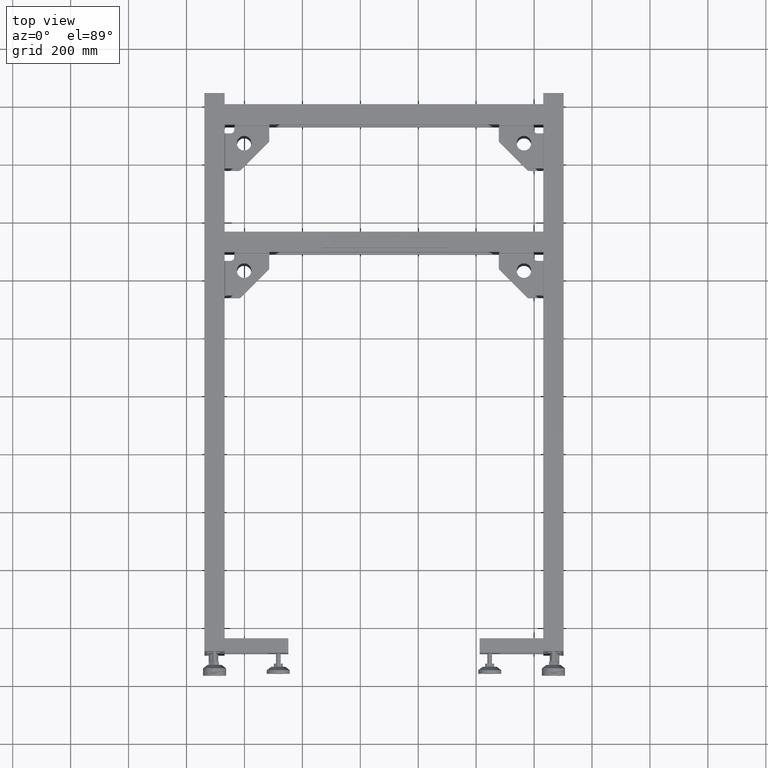
[diagram: clean part render]
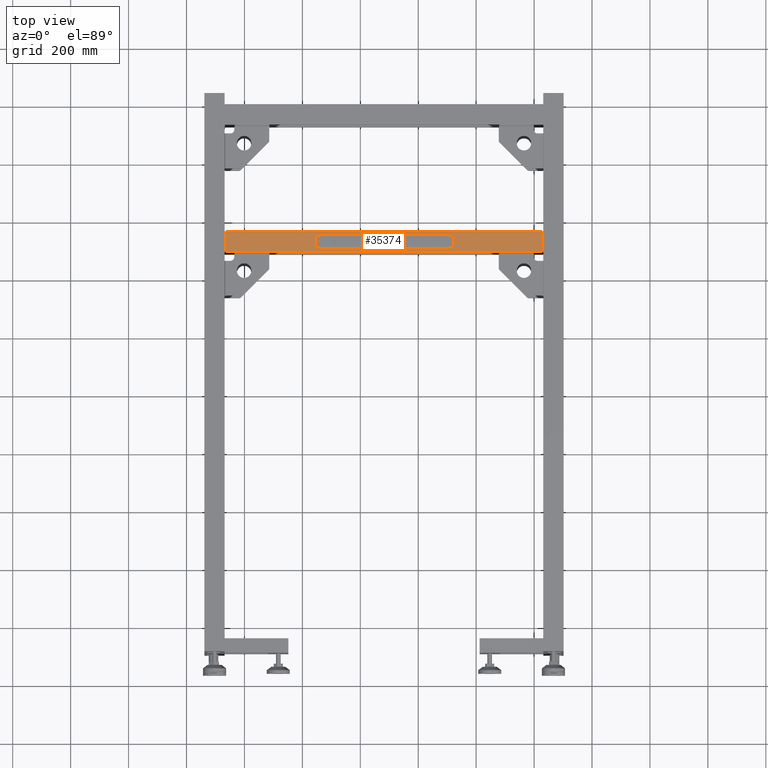
[diagram: same view with one face highlighted and labeled with its STEP entity id]
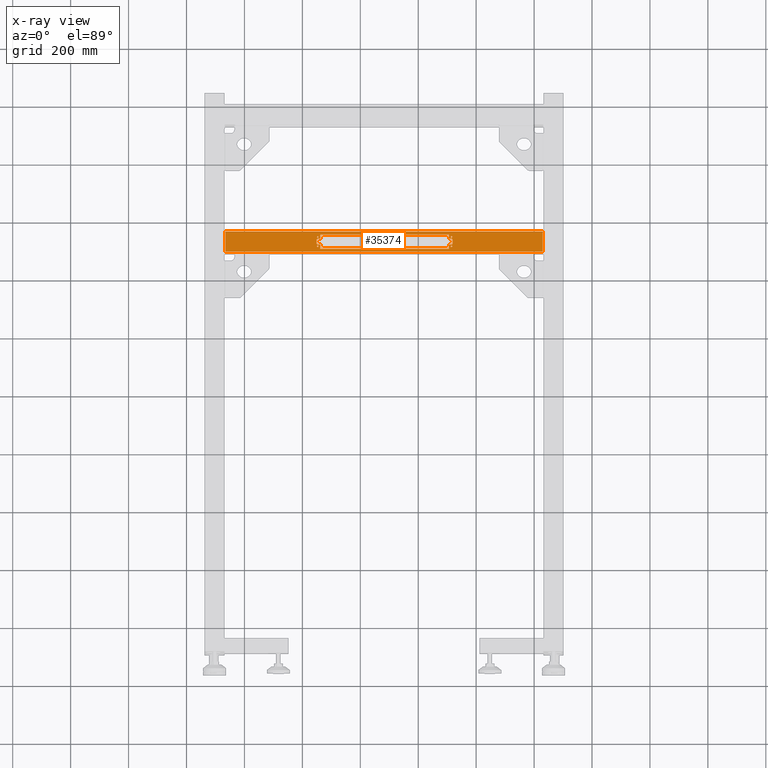
[diagram: x-ray of the same camera — body ghosted, the highlighted face saturated]
A machine part, top view. The second image highlights one B-rep face of the part: STEP entity #35374.
The next image is the same camera in x-ray: the body ghosted, the highlighted face saturated — about 0% of this face is hidden behind the body in this view.
In plain terms, the highlighted planar face has unit normal (0, 0, -1).
Its self-contained STEP definition (entity closure, byte-faithful):
#84 = CARTESIAN_POINT ( 'NONE',  ( -494.1724874371860210, 511.9410804020108117, 299.9999999999999432 ) ) ;
#206 = ORIENTED_EDGE ( 'NONE', *, *, #59155, .F. ) ;
#212 = VERTEX_POINT ( 'NONE', #30657 ) ;
#296 = CIRCLE ( 'NONE', #44288, 5.000000000000004441 ) ;
#777 = ORIENTED_EDGE ( 'NONE', *, *, #29912, .T. ) ;
#866 = EDGE_CURVE ( 'NONE', #59852, #42549, #29460, .T. ) ;
#1314 = DIRECTION ( 'NONE',  ( 0.000000000000000000, 1.000000000000000000, 3.957088814332035175E-15 ) ) ;
#2267 = EDGE_CURVE ( 'NONE', #212, #52946, #41512, .T. ) ;
#2477 = DIRECTION ( 'NONE',  ( 0.000000000000000000, 1.000000000000000000, 3.957088814332028864E-15 ) ) ;
#2911 = VERTEX_POINT ( 'NONE', #9693 ) ;
#3412 = DIRECTION ( 'NONE',  ( 0.000000000000000000, -1.000000000000000000, 0.000000000000000000 ) ) ;
#3539 = CIRCLE ( 'NONE', #24412, 2.600000000000046718 ) ;
#3893 = CARTESIAN_POINT ( 'NONE',  ( -951.1724874371860778, 531.9410804020108117, 300.0000000000000568 ) ) ;
#4231 = PLANE ( 'NONE',  #59996 ) ;
#4390 = VECTOR ( 'NONE', #6062, 1000.000000000000000 ) ;
#4404 = ORIENTED_EDGE ( 'NONE', *, *, #866, .F. ) ;
#5004 = CARTESIAN_POINT ( 'NONE',  ( -938.1724874371859642, 546.4410804020108117, 300.0000000000000568 ) ) ;
#5146 = ORIENTED_EDGE ( 'NONE', *, *, #19072, .T. ) ;
#5414 = VECTOR ( 'NONE', #49997, 1000.000000000000000 ) ;
#5570 = VERTEX_POINT ( 'NONE', #62688 ) ;
#5593 = DIRECTION ( 'NONE',  ( 0.000000000000000000, 1.000000000000000000, 0.000000000000000000 ) ) ;
#5809 = CARTESIAN_POINT ( 'NONE',  ( -494.1724874371860210, 546.4410804020108117, 300.0000000000000568 ) ) ;
#6062 = DIRECTION ( 'NONE',  ( -1.000000000000000000, -0.000000000000000000, 0.000000000000000000 ) ) ;
#6579 = CARTESIAN_POINT ( 'NONE',  ( -951.1724874371860778, 531.9410804020108117, 300.0000000000000568 ) ) ;
#6921 = DIRECTION ( 'NONE',  ( 0.000000000000000000, -1.000000000000000000, -3.396508223080412663E-15 ) ) ;
#7385 = CARTESIAN_POINT ( 'NONE',  ( -486.1724874371860210, 511.9410804020108117, 299.9999999999999432 ) ) ;
#7807 = CARTESIAN_POINT ( 'NONE',  ( -938.1724874371859642, 497.4410804020108117, 299.9999999999999432 ) ) ;
#7987 = LINE ( 'NONE', #28980, #5414 ) ;
#8016 = DIRECTION ( 'NONE',  ( 0.000000000000000000, 2.999999999999999839E-15, -1.000000000000000000 ) ) ;
#8199 = EDGE_CURVE ( 'NONE', #60630, #62377, #25221, .T. ) ;
#8228 = VERTEX_POINT ( 'NONE', #9405 ) ;
#8335 = DIRECTION ( 'NONE',  ( -1.000000000000000000, -0.000000000000000000, 0.000000000000000000 ) ) ;
#8598 = VERTEX_POINT ( 'NONE', #29634 ) ;
#8788 = ORIENTED_EDGE ( 'NONE', *, *, #65870, .T. ) ;
#8926 = DIRECTION ( 'NONE',  ( 0.000000000000000000, -2.999999999999999839E-15, 1.000000000000000000 ) ) ;
#8969 = EDGE_CURVE ( 'NONE', #15311, #8598, #56063, .T. ) ;
#8998 = DIRECTION ( 'NONE',  ( 0.000000000000000000, -2.999999999999999839E-15, 1.000000000000000000 ) ) ;
#9104 = EDGE_LOOP ( 'NONE', ( #39701, #46051 ) ) ;
#9401 = FACE_BOUND ( 'NONE', #55319, .T. ) ;
#9405 = CARTESIAN_POINT ( 'NONE',  ( -481.1724874371859642, 516.9410804020108117, 300.0000000000000000 ) ) ;
#9460 = EDGE_CURVE ( 'NONE', #33391, #54671, #42521, .T. ) ;
#9693 = CARTESIAN_POINT ( 'NONE',  ( -494.1724874371860210, 531.9410804020108117, 300.0000000000000568 ) ) ;
#9968 = DIRECTION ( 'NONE',  ( 0.000000000000000000, -1.000000000000000000, 0.000000000000000000 ) ) ;
#11160 = VECTOR ( 'NONE', #41746, 1000.000000000000000 ) ;
#11732 = LINE ( 'NONE', #54085, #43968 ) ;
#12569 = DIRECTION ( 'NONE',  ( -1.148506577198424101E-14, -1.000000000000000000, -3.957088814332020186E-15 ) ) ;
#12584 = ORIENTED_EDGE ( 'NONE', *, *, #66616, .F. ) ;
#13010 = AXIS2_PLACEMENT_3D ( 'NONE', #53802, #30522, #53459 ) ;
#13047 = CARTESIAN_POINT ( 'NONE',  ( -485.1724874371860210, 505.9410804020138812, 299.9999999999999432 ) ) ;
#13152 = VERTEX_POINT ( 'NONE', #27891 ) ;
#13997 = EDGE_CURVE ( 'NONE', #25583, #2911, #34490, .T. ) ;
#14119 = VECTOR ( 'NONE', #51027, 1000.000000000000000 ) ;
#14574 = LINE ( 'NONE', #84, #11160 ) ;
#14608 = EDGE_CURVE ( 'NONE', #52946, #212, #32580, .T. ) ;
#14903 = DIRECTION ( 'NONE',  ( 0.000000000000000000, 2.999999999999999839E-15, -1.000000000000000000 ) ) ;
#15127 = CARTESIAN_POINT ( 'NONE',  ( -485.1724874371860210, 537.9410804020139949, 300.0000000000000568 ) ) ;
#15311 = VERTEX_POINT ( 'NONE', #36196 ) ;
#15789 = EDGE_CURVE ( 'NONE', #2911, #33391, #22310, .T. ) ;
#16454 = EDGE_CURVE ( 'NONE', #48762, #59852, #54244, .T. ) ;
#16756 = CIRCLE ( 'NONE', #65130, 2.600000000000046718 ) ;
#17717 = CARTESIAN_POINT ( 'NONE',  ( -485.1724874371860210, 537.9410804020139949, 300.0000000000000568 ) ) ;
#17842 = VERTEX_POINT ( 'NONE', #64178 ) ;
#18338 = ORIENTED_EDGE ( 'NONE', *, *, #9460, .F. ) ;
#18346 = AXIS2_PLACEMENT_3D ( 'NONE', #40255, #8926, #34061 ) ;
#19072 = EDGE_CURVE ( 'NONE', #25583, #5570, #61753, .T. ) ;
#19080 = EDGE_CURVE ( 'NONE', #21633, #28820, #14574, .T. ) ;
#19140 = CARTESIAN_POINT ( 'NONE',  ( -947.1724874371860778, 540.5410804020107207, 300.0000000000000568 ) ) ;
#19314 = CARTESIAN_POINT ( 'NONE',  ( -947.1724874371860778, 537.9410804020108117, 300.0000000000000568 ) ) ;
#19698 = EDGE_LOOP ( 'NONE', ( #66414, #57597 ) ) ;
#19725 = FACE_BOUND ( 'NONE', #9104, .T. ) ;
#19759 = VECTOR ( 'NONE', #44983, 1000.000000000000000 ) ;
#20063 = DIRECTION ( 'NONE',  ( 0.000000000000000000, 3.396508223080412663E-15, -1.000000000000000000 ) ) ;
#20068 = EDGE_LOOP ( 'NONE', ( #54204, #62074, #49127, #206 ) ) ;
#20086 = DIRECTION ( 'NONE',  ( 0.000000000000000000, 2.999999999999999839E-15, -1.000000000000000000 ) ) ;
#20465 = EDGE_CURVE ( 'NONE', #55751, #28532, #47620, .T. ) ;
#20856 = VECTOR ( 'NONE', #32731, 1000.000000000000000 ) ;
#20900 = EDGE_CURVE ( 'NONE', #65223, #38579, #16756, .T. ) ;
#21633 = VERTEX_POINT ( 'NONE', #31855 ) ;
#21690 = CARTESIAN_POINT ( 'NONE',  ( -947.1724874371860778, 508.5410804020107207, 299.9999999999999432 ) ) ;
#22007 = CARTESIAN_POINT ( 'NONE',  ( -170.1724874371841736, 556.9410804020110390, 300.0000000000001137 ) ) ;
#22310 = LINE ( 'NONE', #5809, #63405 ) ;
#23016 = ORIENTED_EDGE ( 'NONE', *, *, #43069, .T. ) ;
#24412 = AXIS2_PLACEMENT_3D ( 'NONE', #54847, #38334, #43504 ) ;
#24586 = EDGE_CURVE ( 'NONE', #34601, #59684, #59258, .T. ) ;
#24843 = CARTESIAN_POINT ( 'NONE',  ( -494.1724874371860210, 531.9410804020108117, 300.0000000000000568 ) ) ;
#25216 = CARTESIAN_POINT ( 'NONE',  ( 129.8275125628138937, 556.9410804020106980, 300.0000000000001137 ) ) ;
#25221 = LINE ( 'NONE', #3893, #52555 ) ;
#25583 = VERTEX_POINT ( 'NONE', #59771 ) ;
#25637 = AXIS2_PLACEMENT_3D ( 'NONE', #19314, #8998, #54214 ) ;
#25856 = VERTEX_POINT ( 'NONE', #45474 ) ;
#27891 = CARTESIAN_POINT ( 'NONE',  ( -946.1724874371859642, 511.9410804020108117, 299.9999999999999432 ) ) ;
#27961 = AXIS2_PLACEMENT_3D ( 'NONE', #30903, #36076, #51582 ) ;
#28070 = CARTESIAN_POINT ( 'NONE',  ( -938.1724874371859642, 511.9410804020108117, 299.9999999999999432 ) ) ;
#28532 = VERTEX_POINT ( 'NONE', #19140 ) ;
#28765 = DIRECTION ( 'NONE',  ( 0.000000000000000000, 1.000000000000000000, 0.000000000000000000 ) ) ;
#28820 = VERTEX_POINT ( 'NONE', #7385 ) ;
#28980 = CARTESIAN_POINT ( 'NONE',  ( -938.1724874371859642, 546.4410804020108117, 300.0000000000000568 ) ) ;
#29460 = LINE ( 'NONE', #7807, #19759 ) ;
#29493 = AXIS2_PLACEMENT_3D ( 'NONE', #55182, #8016, #38676 ) ;
#29634 = CARTESIAN_POINT ( 'NONE',  ( -1266.172487437185964, 556.9410804020106980, 300.0000000000001137 ) ) ;
#29912 = EDGE_CURVE ( 'NONE', #60630, #59684, #65804, .T. ) ;
#30197 = CARTESIAN_POINT ( 'NONE',  ( -485.1724874371860210, 503.3410804020139722, 299.9999999999999432 ) ) ;
#30432 = AXIS2_PLACEMENT_3D ( 'NONE', #15127, #57128, #9968 ) ;
#30522 = DIRECTION ( 'NONE',  ( 0.000000000000000000, -2.999999999999999839E-15, 1.000000000000000000 ) ) ;
#30657 = CARTESIAN_POINT ( 'NONE',  ( -485.1724874371860210, 535.3410804020138585, 300.0000000000000568 ) ) ;
#30733 = DIRECTION ( 'NONE',  ( 8.326672684688670898E-15, -1.000000000000000000, -2.999999999999999839E-15 ) ) ;
#30903 = CARTESIAN_POINT ( 'NONE',  ( -485.1724874371860210, 505.9410804020138812, 299.9999999999999432 ) ) ;
#31401 = CARTESIAN_POINT ( 'NONE',  ( -486.1724874371860210, 526.9410804020108117, 300.0000000000000568 ) ) ;
#31476 = VECTOR ( 'NONE', #58020, 1000.000000000000000 ) ;
#31735 = LINE ( 'NONE', #57912, #36660 ) ;
#31832 = CARTESIAN_POINT ( 'NONE',  ( -938.1724874371859642, 497.4410804020108117, 299.9999999999999432 ) ) ;
#31855 = CARTESIAN_POINT ( 'NONE',  ( -494.1724874371860210, 511.9410804020108117, 299.9999999999999432 ) ) ;
#32153 = EDGE_CURVE ( 'NONE', #8598, #53732, #11732, .T. ) ;
#32542 = AXIS2_PLACEMENT_3D ( 'NONE', #44914, #20086, #45253 ) ;
#32553 = LINE ( 'NONE', #38081, #4390 ) ;
#32580 = CIRCLE ( 'NONE', #30432, 2.600000000000046718 ) ;
#32731 = DIRECTION ( 'NONE',  ( -1.000000000000000000, -0.000000000000000000, 0.000000000000000000 ) ) ;
#32908 = CARTESIAN_POINT ( 'NONE',  ( -486.1724874371860210, 516.9410804020108117, 300.0000000000000000 ) ) ;
#33391 = VERTEX_POINT ( 'NONE', #43423 ) ;
#34061 = DIRECTION ( 'NONE',  ( 0.000000000000000000, -1.000000000000000000, 0.000000000000000000 ) ) ;
#34486 = LINE ( 'NONE', #35523, #14119 ) ;
#34490 = LINE ( 'NONE', #24843, #45250 ) ;
#34601 = VERTEX_POINT ( 'NONE', #52914 ) ;
#35374 = ADVANCED_FACE ( 'NONE', ( #41402, #9401, #66908, #62410, #19725, #61743 ), #4231, .F. ) ;
#35523 = CARTESIAN_POINT ( 'NONE',  ( -951.1724874371860778, 511.9410804020108117, 299.9999999999999432 ) ) ;
#35667 = ORIENTED_EDGE ( 'NONE', *, *, #60792, .F. ) ;
#36076 = DIRECTION ( 'NONE',  ( 0.000000000000000000, -2.999999999999999839E-15, 1.000000000000000000 ) ) ;
#36196 = CARTESIAN_POINT ( 'NONE',  ( -170.1724874371841736, 556.9410804020110390, 300.0000000000001137 ) ) ;
#36569 = DIRECTION ( 'NONE',  ( 0.000000000000000000, 1.000000000000000000, 2.999999999999999839E-15 ) ) ;
#36660 = VECTOR ( 'NONE', #36569, 1000.000000000000000 ) ;
#36960 = VERTEX_POINT ( 'NONE', #21690 ) ;
#37899 = EDGE_LOOP ( 'NONE', ( #43926, #39708 ) ) ;
#38081 = CARTESIAN_POINT ( 'NONE',  ( 129.8275125628138937, 486.9410804020108117, 299.9999999999998863 ) ) ;
#38306 = VECTOR ( 'NONE', #2477, 1000.000000000000000 ) ;
#38334 = DIRECTION ( 'NONE',  ( 0.000000000000000000, -2.999999999999999839E-15, 1.000000000000000000 ) ) ;
#38579 = VERTEX_POINT ( 'NONE', #30197 ) ;
#38676 = DIRECTION ( 'NONE',  ( 0.000000000000000000, 1.000000000000000000, 0.000000000000000000 ) ) ;
#38720 = DIRECTION ( 'NONE',  ( 0.000000000000000000, -2.999999999999999839E-15, 1.000000000000000000 ) ) ;
#39701 = ORIENTED_EDGE ( 'NONE', *, *, #67484, .F. ) ;
#39708 = ORIENTED_EDGE ( 'NONE', *, *, #65084, .F. ) ;
#40213 = EDGE_LOOP ( 'NONE', ( #65166, #52046 ) ) ;
#40255 = CARTESIAN_POINT ( 'NONE',  ( -947.1724874371860778, 505.9410804020108117, 299.9999999999999432 ) ) ;
#40634 = ORIENTED_EDGE ( 'NONE', *, *, #16454, .F. ) ;
#40806 = ORIENTED_EDGE ( 'NONE', *, *, #48973, .F. ) ;
#40865 = CARTESIAN_POINT ( 'NONE',  ( -1266.172487437185964, 486.9410804020108117, 299.9999999999998863 ) ) ;
#41402 = FACE_OUTER_BOUND ( 'NONE', #20068, .T. ) ;
#41512 = CIRCLE ( 'NONE', #50316, 2.600000000000046718 ) ;
#41710 = CARTESIAN_POINT ( 'NONE',  ( -938.1724874371859642, 546.4410804020108117, 300.0000000000000568 ) ) ;
#41746 = DIRECTION ( 'NONE',  ( 1.000000000000000000, 5.337610695313250398E-16, 1.601283208593974939E-30 ) ) ;
#42521 = LINE ( 'NONE', #5004, #31476 ) ;
#42549 = VERTEX_POINT ( 'NONE', #42610 ) ;
#42610 = CARTESIAN_POINT ( 'NONE',  ( -494.1724874371860210, 497.4410804020108117, 299.9999999999999432 ) ) ;
#43069 = EDGE_CURVE ( 'NONE', #13152, #62377, #50145, .T. ) ;
#43221 = DIRECTION ( 'NONE',  ( 0.000000000000000000, -1.000000000000000000, 0.000000000000000000 ) ) ;
#43423 = CARTESIAN_POINT ( 'NONE',  ( -494.1724874371860210, 546.4410804020108117, 300.0000000000000568 ) ) ;
#43504 = DIRECTION ( 'NONE',  ( 0.000000000000000000, -1.000000000000000000, 0.000000000000000000 ) ) ;
#43860 = CARTESIAN_POINT ( 'NONE',  ( -485.1724874371860210, 540.5410804020141313, 300.0000000000000568 ) ) ;
#43926 = ORIENTED_EDGE ( 'NONE', *, *, #20465, .F. ) ;
#43968 = VECTOR ( 'NONE', #6921, 1000.000000000000000 ) ;
#44278 = DIRECTION ( 'NONE',  ( 0.000000000000000000, 2.999999999999999839E-15, -1.000000000000000000 ) ) ;
#44288 = AXIS2_PLACEMENT_3D ( 'NONE', #32908, #44278, #28765 ) ;
#44866 = CARTESIAN_POINT ( 'NONE',  ( -485.1724874371860210, 508.5410804020140745, 299.9999999999999432 ) ) ;
#44914 = CARTESIAN_POINT ( 'NONE',  ( -946.1724874371859642, 516.9410804020108117, 300.0000000000000000 ) ) ;
#44983 = DIRECTION ( 'NONE',  ( 1.000000000000000000, 6.251255769285789110E-17, 1.875376730785736675E-31 ) ) ;
#45071 = EDGE_CURVE ( 'NONE', #36960, #17842, #64500, .T. ) ;
#45250 = VECTOR ( 'NONE', #8335, 1000.000000000000000 ) ;
#45253 = DIRECTION ( 'NONE',  ( 0.000000000000000000, 1.000000000000000000, 0.000000000000000000 ) ) ;
#45474 = CARTESIAN_POINT ( 'NONE',  ( -170.1724874371841736, 486.9410804020110390, 299.9999999999998863 ) ) ;
#45497 = CARTESIAN_POINT ( 'NONE',  ( -951.1724874371860778, 526.9410804020108117, 300.0000000000000568 ) ) ;
#45549 = CARTESIAN_POINT ( 'NONE',  ( -947.1724874371860778, 535.3410804020107889, 300.0000000000000568 ) ) ;
#45865 = VECTOR ( 'NONE', #12569, 1000.000000000000000 ) ;
#46051 = ORIENTED_EDGE ( 'NONE', *, *, #20900, .F. ) ;
#46635 = EDGE_CURVE ( 'NONE', #42549, #21633, #48957, .T. ) ;
#47620 = CIRCLE ( 'NONE', #25637, 2.600000000000046718 ) ;
#48180 = DIRECTION ( 'NONE',  ( 2.653611717788262918E-16, -1.000000000000000000, -3.396508223080412663E-15 ) ) ;
#48581 = CARTESIAN_POINT ( 'NONE',  ( -951.1724874371860778, 516.9410804020108117, 300.0000000000000000 ) ) ;
#48762 = VERTEX_POINT ( 'NONE', #56680 ) ;
#48812 = ORIENTED_EDGE ( 'NONE', *, *, #24586, .F. ) ;
#48861 = EDGE_CURVE ( 'NONE', #17842, #36960, #59237, .T. ) ;
#48957 = LINE ( 'NONE', #58947, #38306 ) ;
#48973 = EDGE_CURVE ( 'NONE', #54671, #34601, #7987, .T. ) ;
#49073 = VECTOR ( 'NONE', #65726, 1000.000000000000000 ) ;
#49127 = ORIENTED_EDGE ( 'NONE', *, *, #61940, .F. ) ;
#49909 = DIRECTION ( 'NONE',  ( 0.000000000000000000, -2.999999999999999839E-15, 1.000000000000000000 ) ) ;
#49997 = DIRECTION ( 'NONE',  ( 3.828355257328120833E-15, -1.000000000000000000, -3.957088814332029653E-15 ) ) ;
#50145 = CIRCLE ( 'NONE', #32542, 5.000000000000004441 ) ;
#50188 = VECTOR ( 'NONE', #48180, 1000.000000000000000 ) ;
#50227 = CARTESIAN_POINT ( 'NONE',  ( 129.8275125628138937, 556.9410804020106980, 300.0000000000001137 ) ) ;
#50316 = AXIS2_PLACEMENT_3D ( 'NONE', #17717, #38720, #43221 ) ;
#51027 = DIRECTION ( 'NONE',  ( 1.000000000000000000, 1.441154887734576138E-14, 4.323464663203728341E-29 ) ) ;
#51582 = DIRECTION ( 'NONE',  ( 0.000000000000000000, -1.000000000000000000, 0.000000000000000000 ) ) ;
#52046 = ORIENTED_EDGE ( 'NONE', *, *, #14608, .F. ) ;
#52555 = VECTOR ( 'NONE', #30733, 1000.000000000000000 ) ;
#52914 = CARTESIAN_POINT ( 'NONE',  ( -938.1724874371859642, 531.9410804020108117, 300.0000000000000568 ) ) ;
#52941 = AXIS2_PLACEMENT_3D ( 'NONE', #31401, #14903, #5593 ) ;
#52946 = VERTEX_POINT ( 'NONE', #43860 ) ;
#53459 = DIRECTION ( 'NONE',  ( 0.000000000000000000, -1.000000000000000000, 0.000000000000000000 ) ) ;
#53732 = VERTEX_POINT ( 'NONE', #40865 ) ;
#53802 = CARTESIAN_POINT ( 'NONE',  ( -947.1724874371860778, 505.9410804020108117, 299.9999999999999432 ) ) ;
#54085 = CARTESIAN_POINT ( 'NONE',  ( -1266.172487437185964, 556.9410804020106980, 300.0000000000001137 ) ) ;
#54204 = ORIENTED_EDGE ( 'NONE', *, *, #8969, .T. ) ;
#54214 = DIRECTION ( 'NONE',  ( 0.000000000000000000, -1.000000000000000000, 0.000000000000000000 ) ) ;
#54244 = LINE ( 'NONE', #28070, #45865 ) ;
#54671 = VERTEX_POINT ( 'NONE', #41710 ) ;
#54847 = CARTESIAN_POINT ( 'NONE',  ( -947.1724874371860778, 537.9410804020108117, 300.0000000000000568 ) ) ;
#55182 = CARTESIAN_POINT ( 'NONE',  ( -946.1724874371859642, 526.9410804020108117, 300.0000000000000568 ) ) ;
#55319 = EDGE_LOOP ( 'NONE', ( #48812, #40806, #18338, #63316, #57080, #5146, #12584, #8788, #64000, #65415, #4404, #40634, #35667, #23016, #63532, #777 ) ) ;
#55751 = VERTEX_POINT ( 'NONE', #45549 ) ;
#56063 = LINE ( 'NONE', #50227, #49073 ) ;
#56680 = CARTESIAN_POINT ( 'NONE',  ( -938.1724874371859642, 511.9410804020108117, 299.9999999999999432 ) ) ;
#57080 = ORIENTED_EDGE ( 'NONE', *, *, #13997, .F. ) ;
#57128 = DIRECTION ( 'NONE',  ( 0.000000000000000000, -2.999999999999999839E-15, 1.000000000000000000 ) ) ;
#57597 = ORIENTED_EDGE ( 'NONE', *, *, #45071, .F. ) ;
#57632 = CIRCLE ( 'NONE', #27961, 2.600000000000046718 ) ;
#57912 = CARTESIAN_POINT ( 'NONE',  ( -481.1724874371859642, 531.9410804020108117, 300.0000000000000568 ) ) ;
#58020 = DIRECTION ( 'NONE',  ( -1.000000000000000000, -6.251255769285789110E-17, -1.875376730785736675E-31 ) ) ;
#58947 = CARTESIAN_POINT ( 'NONE',  ( -494.1724874371860210, 511.9410804020108117, 299.9999999999999432 ) ) ;
#59155 = EDGE_CURVE ( 'NONE', #15311, #25856, #63338, .T. ) ;
#59237 = CIRCLE ( 'NONE', #13010, 2.600000000000046718 ) ;
#59258 = LINE ( 'NONE', #6579, #20856 ) ;
#59684 = VERTEX_POINT ( 'NONE', #67667 ) ;
#59771 = CARTESIAN_POINT ( 'NONE',  ( -486.1724874371860210, 531.9410804020108117, 300.0000000000000568 ) ) ;
#59852 = VERTEX_POINT ( 'NONE', #31832 ) ;
#59996 = AXIS2_PLACEMENT_3D ( 'NONE', #25216, #20063, #62075 ) ;
#60630 = VERTEX_POINT ( 'NONE', #45497 ) ;
#60792 = EDGE_CURVE ( 'NONE', #13152, #48762, #34486, .T. ) ;
#61743 = FACE_BOUND ( 'NONE', #19698, .T. ) ;
#61753 = CIRCLE ( 'NONE', #52941, 5.000000000000004441 ) ;
#61940 = EDGE_CURVE ( 'NONE', #25856, #53732, #32553, .T. ) ;
#62074 = ORIENTED_EDGE ( 'NONE', *, *, #32153, .T. ) ;
#62075 = DIRECTION ( 'NONE',  ( 0.000000000000000000, -1.000000000000000000, -3.396508223080412663E-15 ) ) ;
#62377 = VERTEX_POINT ( 'NONE', #48581 ) ;
#62410 = FACE_BOUND ( 'NONE', #40213, .T. ) ;
#62688 = CARTESIAN_POINT ( 'NONE',  ( -481.1724874371859642, 526.9410804020108117, 300.0000000000000568 ) ) ;
#63316 = ORIENTED_EDGE ( 'NONE', *, *, #15789, .F. ) ;
#63338 = LINE ( 'NONE', #22007, #50188 ) ;
#63405 = VECTOR ( 'NONE', #1314, 1000.000000000000000 ) ;
#63532 = ORIENTED_EDGE ( 'NONE', *, *, #8199, .F. ) ;
#64000 = ORIENTED_EDGE ( 'NONE', *, *, #19080, .F. ) ;
#64178 = CARTESIAN_POINT ( 'NONE',  ( -947.1724874371860778, 503.3410804020108458, 299.9999999999999432 ) ) ;
#64500 = CIRCLE ( 'NONE', #18346, 2.600000000000046718 ) ;
#65084 = EDGE_CURVE ( 'NONE', #28532, #55751, #3539, .T. ) ;
#65130 = AXIS2_PLACEMENT_3D ( 'NONE', #13047, #49909, #3412 ) ;
#65166 = ORIENTED_EDGE ( 'NONE', *, *, #2267, .F. ) ;
#65223 = VERTEX_POINT ( 'NONE', #44866 ) ;
#65415 = ORIENTED_EDGE ( 'NONE', *, *, #46635, .F. ) ;
#65726 = DIRECTION ( 'NONE',  ( -1.000000000000000000, -0.000000000000000000, 0.000000000000000000 ) ) ;
#65804 = CIRCLE ( 'NONE', #29493, 5.000000000000004441 ) ;
#65870 = EDGE_CURVE ( 'NONE', #8228, #28820, #296, .T. ) ;
#66414 = ORIENTED_EDGE ( 'NONE', *, *, #48861, .F. ) ;
#66616 = EDGE_CURVE ( 'NONE', #8228, #5570, #31735, .T. ) ;
#66908 = FACE_BOUND ( 'NONE', #37899, .T. ) ;
#67484 = EDGE_CURVE ( 'NONE', #38579, #65223, #57632, .T. ) ;
#67667 = CARTESIAN_POINT ( 'NONE',  ( -946.1724874371859642, 531.9410804020108117, 300.0000000000000568 ) ) ;